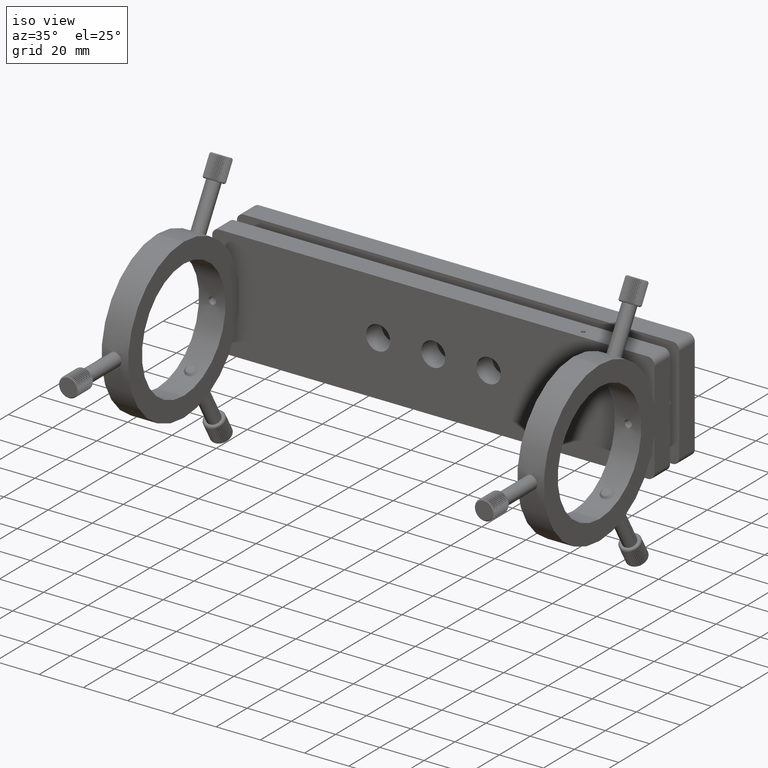
[diagram: clean part render]
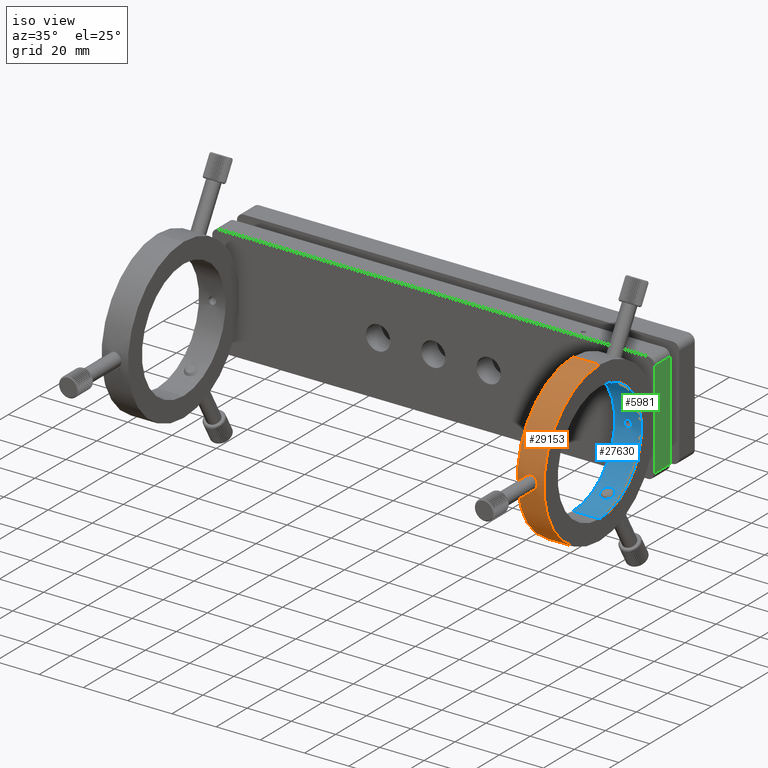
[diagram: same view with three faces highlighted in distinct colors, each labeled with its STEP entity id]
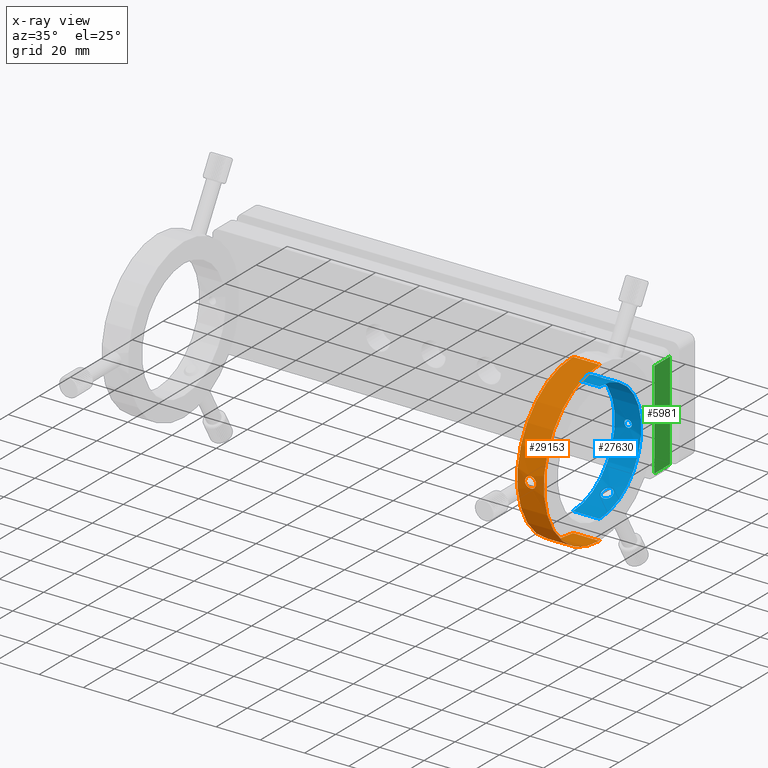
[diagram: x-ray of the same camera — body ghosted, the three highlighted faces saturated]
A machine part, iso view with three faces highlighted in distinct colors.
The next image is the same camera in x-ray (body ghosted, the three faces saturated) — at least one of them is partly hidden behind the body in this view.
Their STEP definitions:

[orange] entity #29153 — the highlighted cylindrical surface (partial cylindrical patch) has radius 36 mm, axis along (1, -0, 0).
#1092 = VERTEX_POINT ( 'NONE', #44665 ) ;
#1402 = CARTESIAN_POINT ( 'NONE',  ( 96.36693914623083400, -52.91295791704509800, -35.99999999999999300 ) ) ;
#2074 = CARTESIAN_POINT ( 'NONE',  ( 88.71625864207503300, -88.86377367074162200, -1.884806156109657800 ) ) ;
#2231 = CARTESIAN_POINT ( 'NONE',  ( 91.61989632803644700, -88.84763830364579500, -2.169590548319280100 ) ) ;
#2399 = CARTESIAN_POINT ( 'NONE',  ( 92.53673800274860600, -88.89142123570967200, -1.252463694352014400 ) ) ;
#2591 = EDGE_CURVE ( 'NONE', #38362, #33787, #34173, .T. ) ;
#2720 = CARTESIAN_POINT ( 'NONE',  ( 92.78717414306538600, -88.90749267773381300, -0.6473099060677034400 ) ) ;
#2773 = CARTESIAN_POINT ( 'NONE',  ( 84.36693914623079100, -52.91295791704509800, -36.00000000000000700 ) ) ;
#3624 = AXIS2_PLACEMENT_3D ( 'NONE', #23881, #12550, #38853 ) ;
#3644 = CARTESIAN_POINT ( 'NONE',  ( 88.71309207276220800, -88.86392427792402800, 1.881846646252523600 ) ) ;
#4444 = CARTESIAN_POINT ( 'NONE',  ( 92.24886335070574700, -88.87513740292246200, 1.653771092440506000 ) ) ;
#4600 = CARTESIAN_POINT ( 'NONE',  ( 92.61309516743132500, -88.89616692592505800, 1.109633475276987900 ) ) ;
#4944 = B_SPLINE_CURVE_WITH_KNOTS ( 'NONE', 3,
 ( #47150, #9957, #32520, #2720, #24572, #17635, #2399, #43994, #47309, #29073, #40042, #2231, #28563, #6533, #6045, #32339, #43836, #28908, #21424, #6363, #39864, #32816, #10292, #17308, #2074, #47631, #43686, #10134, #14020, #7762, #48691, #11366, #26322, #30452 ),
 .UNSPECIFIED., .F., .F.,
 ( 4, 2, 2, 2, 2, 2, 2, 2, 2, 2, 2, 2, 2, 2, 2, 2, 4 ),
 ( 2.523894446711958700E-020, 0.0004886557414019542100, 0.0009773114828039084200, 0.001465967224205862300, 0.001954622965607816000, 0.002443278707009769400, 0.002931934448411723300, 0.003420590189813677200, 0.003909245931215631100, 0.004397901672617585000, 0.004886557414019538800, 0.005375213155421493600, 0.005863868896823448300, 0.006352524638225402200, 0.006841180379627356100, 0.007329836121029310900, 0.007818491862431263900 ),
 .UNSPECIFIED. ) ;
#5384 = DIRECTION ( 'NONE',  ( 1.000000000000000000, -2.025454320056202900E-032, 1.054711873393898300E-015 ) ) ;
#6045 = CARTESIAN_POINT ( 'NONE',  ( 91.01597434386458500, -88.83154930085105100, -2.419881807148550800 ) ) ;
#6363 = CARTESIAN_POINT ( 'NONE',  ( 89.71835201917225800, -88.83154586218925900, -2.419930633638419000 ) ) ;
#6533 = CARTESIAN_POINT ( 'NONE',  ( 91.17358315962413000, -88.83479059618085200, -2.371885060027208800 ) ) ;
#7719 = VECTOR ( 'NONE', #5384, 1000.000000000000000 ) ;
#7762 = CARTESIAN_POINT ( 'NONE',  ( 87.99450002554436900, -88.90427003297490700, -0.8052380656971069900 ) ) ;
#8072 = EDGE_CURVE ( 'NONE', #33787, #1092, #41576, .T. ) ;
#8377 = CARTESIAN_POINT ( 'NONE',  ( 92.80050165254331800, -88.90818928583594500, 0.6586249403062206500 ) ) ;
#8689 = CARTESIAN_POINT ( 'NONE',  ( 91.88933089430742000, -88.85804454309638300, 1.989716628330948000 ) ) ;
#8860 = CARTESIAN_POINT ( 'NONE',  ( 89.55913214990586400, -88.83481355326651400, 2.371549571165712900 ) ) ;
#8893 = DIRECTION ( 'NONE',  ( 1.156482317317870300E-015, 0.0000000000000000000, -1.000000000000000000 ) ) ;
#9304 = FACE_BOUND ( 'NONE', #47026, .T. ) ;
#9870 = ORIENTED_EDGE ( 'NONE', *, *, #47521, .T. ) ;
#9957 = CARTESIAN_POINT ( 'NONE',  ( 92.86693914623074900, -88.91295791704509100, -0.1652343075597179400 ) ) ;
#10134 = CARTESIAN_POINT ( 'NONE',  ( 88.19824246860086700, -88.89135529962818800, -1.254302439526585800 ) ) ;
#10292 = CARTESIAN_POINT ( 'NONE',  ( 89.11338646820561800, -88.84766369865556600, -2.169132977666624400 ) ) ;
#10560 = VECTOR ( 'NONE', #12588, 1000.000000000000000 ) ;
#11175 = CARTESIAN_POINT ( 'NONE',  ( 89.11327249898745600, -88.84766608566936000, 2.169107371036529400 ) ) ;
#11178 = LINE ( 'NONE', #34822, #10560 ) ;
#11366 = CARTESIAN_POINT ( 'NONE',  ( 87.88329328273684400, -88.91181178230395700, -0.3289320257055001200 ) ) ;
#11412 = CIRCLE ( 'NONE', #22835, 36.00000000000003600 ) ;
#11801 = CARTESIAN_POINT ( 'NONE',  ( 87.88275613780106700, -88.91184883293675500, 0.3253315992489050900 ) ) ;
#11965 = CARTESIAN_POINT ( 'NONE',  ( 92.86693914623074900, -88.91295791704509100, 2.662751847420197400E-015 ) ) ;
#12024 = ORIENTED_EDGE ( 'NONE', *, *, #8072, .T. ) ;
#12115 = CARTESIAN_POINT ( 'NONE',  ( 92.01806056609758900, -88.86379819382042900, 1.884249345080856800 ) ) ;
#12550 = DIRECTION ( 'NONE',  ( -1.000000000000000000, 2.025454320056202900E-032, -1.054711873393898300E-015 ) ) ;
#12588 = DIRECTION ( 'NONE',  ( 1.000000000000000000, -2.025454320056202900E-032, 1.054711873393898300E-015 ) ) ;
#12595 = CARTESIAN_POINT ( 'NONE',  ( 92.86693914623073500, -88.91295791704507700, 0.3303926226988550000 ) ) ;
#13240 = ORIENTED_EDGE ( 'NONE', *, *, #2591, .T. ) ;
#14020 = CARTESIAN_POINT ( 'NONE',  ( 88.11997141435487900, -88.89621714175960700, -1.108156909340773500 ) ) ;
#14503 = VERTEX_POINT ( 'NONE', #43898 ) ;
#14871 = EDGE_CURVE ( 'NONE', #21232, #1092, #11178, .T. ) ;
#16047 = CARTESIAN_POINT ( 'NONE',  ( 90.03760790793438700, -88.82720209049182400, 2.483563216034576600 ) ) ;
#17308 = CARTESIAN_POINT ( 'NONE',  ( 88.84252043599596500, -88.85813197001691300, -1.988134750783008900 ) ) ;
#17635 = CARTESIAN_POINT ( 'NONE',  ( 92.61354651345284600, -88.89619459137163900, -1.108877969106832000 ) ) ;
#19945 = CARTESIAN_POINT ( 'NONE',  ( 84.36693914623079100, -52.91295791704509800, -36.00000000000004300 ) ) ;
#20869 = DIRECTION ( 'NONE',  ( -1.156482317317870300E-015, 0.0000000000000000000, 1.000000000000000000 ) ) ;
#21232 = VERTEX_POINT ( 'NONE', #48788 ) ;
#21424 = CARTESIAN_POINT ( 'NONE',  ( 90.03903902786981900, -88.82718647898543900, -2.483789654013904200 ) ) ;
#22590 = VERTEX_POINT ( 'NONE', #28536 ) ;
#22793 = CARTESIAN_POINT ( 'NONE',  ( 87.99471922098590000, -88.90425640033120700, 0.8056548071568366800 ) ) ;
#22835 = AXIS2_PLACEMENT_3D ( 'NONE', #46689, #42920, #8893 ) ;
#23621 = CARTESIAN_POINT ( 'NONE',  ( 91.61765797550242500, -88.84756343191909900, 2.170795086085730600 ) ) ;
#23776 = CARTESIAN_POINT ( 'NONE',  ( 89.25676760327240800, -88.84288473385082300, 2.245956067471756700 ) ) ;
#23881 = CARTESIAN_POINT ( 'NONE',  ( 96.36693914623079100, -52.91295791704509100, 6.328271240363415200E-015 ) ) ;
#24180 = EDGE_CURVE ( 'NONE', #14503, #22590, #35469, .T. ) ;
#24572 = CARTESIAN_POINT ( 'NONE',  ( 92.73907458406573300, -88.90424996711708200, -0.8061193940071771400 ) ) ;
#26137 = CARTESIAN_POINT ( 'NONE',  ( 88.36763641919634400, -88.88092004932116200, 1.535908973670779400 ) ) ;
#26322 = CARTESIAN_POINT ( 'NONE',  ( 87.86693914623077700, -88.91295791704511900, -0.1631873744001538800 ) ) ;
#27203 = AXIS2_PLACEMENT_3D ( 'NONE', #39656, #28028, #20869 ) ;
#27263 = CARTESIAN_POINT ( 'NONE',  ( 90.19993888711795200, -88.82605678254677200, 2.499865975313847700 ) ) ;
#27422 = CARTESIAN_POINT ( 'NONE',  ( 92.53517267457910100, -88.89132518335303200, 1.255276878925633400 ) ) ;
#27522 = FACE_OUTER_BOUND ( 'NONE', #31373, .T. ) ;
#28028 = DIRECTION ( 'NONE',  ( 1.000000000000000000, -2.025454320056202900E-032, 1.054711873393898300E-015 ) ) ;
#28536 = CARTESIAN_POINT ( 'NONE',  ( 92.86693914623074900, -88.91295791704509100, 2.662751847420197400E-015 ) ) ;
#28563 = CARTESIAN_POINT ( 'NONE',  ( 91.47443259194184900, -88.84280526149919400, -2.247214179830362600 ) ) ;
#28908 = CARTESIAN_POINT ( 'NONE',  ( 90.20472181628854000, -88.82604339378268300, -2.500058308115362700 ) ) ;
#29073 = CARTESIAN_POINT ( 'NONE',  ( 92.01906158776552000, -88.86384445498951800, -1.883368583144558100 ) ) ;
#29153 = ADVANCED_FACE ( 'NONE', ( #9304, #27522 ), #31070, .T. ) ;
#30452 = CARTESIAN_POINT ( 'NONE',  ( 87.86693914623076300, -88.91295791704509100, -2.942941371903136600E-015 ) ) ;
#30582 = CARTESIAN_POINT ( 'NONE',  ( 87.86693914623076300, -88.91295791704509100, -2.942941371903136600E-015 ) ) ;
#30899 = CARTESIAN_POINT ( 'NONE',  ( 91.17096516560511100, -88.83472724966658500, 2.372853313273962000 ) ) ;
#31070 = CYLINDRICAL_SURFACE ( 'NONE', #27203, 36.00000000000003600 ) ;
#31227 = CARTESIAN_POINT ( 'NONE',  ( 90.52990229921570600, -88.82603823642153900, 2.500132394863278300 ) ) ;
#31373 = EDGE_LOOP ( 'NONE', ( #39022, #13240, #12024, #45625 ) ) ;
#32339 = CARTESIAN_POINT ( 'NONE',  ( 90.69320822322089300, -88.82716696889043800, -2.484073899411224100 ) ) ;
#32520 = CARTESIAN_POINT ( 'NONE',  ( 92.85071894586941700, -88.91182119481564400, -0.3276972097888801700 ) ) ;
#32816 = CARTESIAN_POINT ( 'NONE',  ( 89.25973349342864100, -88.84279240741554400, -2.247428021355258700 ) ) ;
#33202 = EDGE_CURVE ( 'NONE', #38362, #21232, #11412, .T. ) ;
#33704 = CARTESIAN_POINT ( 'NONE',  ( 88.84156319494728400, -88.85817099047859800, 1.987444353118165800 ) ) ;
#33787 = VERTEX_POINT ( 'NONE', #1402 ) ;
#34173 = LINE ( 'NONE', #19945, #7719 ) ;
#34665 = CARTESIAN_POINT ( 'NONE',  ( 91.47403016538426400, -88.84278820708301800, 2.247496420788213500 ) ) ;
#34822 = CARTESIAN_POINT ( 'NONE',  ( 84.36693914623070600, -52.91295791704509100, 36.00000000000002800 ) ) ;
#34989 = CARTESIAN_POINT ( 'NONE',  ( 89.71805040784207100, -88.83155382613152500, 2.419811711218496700 ) ) ;
#35433 = ORIENTED_EDGE ( 'NONE', *, *, #24180, .T. ) ;
#35469 = B_SPLINE_CURVE_WITH_KNOTS ( 'NONE', 3,
 ( #30582, #41562, #11801, #38082, #22793, #41092, #26137, #3644, #33704, #11175, #23776, #8860, #34989, #16047, #27263, #31227, #41908, #46163, #30899, #34665, #23621, #8689, #12115, #4444, #38738, #27422, #4600, #8377, #12595, #11965 ),
 .UNSPECIFIED., .F., .F.,
 ( 4, 2, 2, 2, 2, 2, 2, 2, 2, 2, 2, 2, 2, 2, 4 ),
 ( 0.007818491862431263900, 0.008307035235726456500, 0.008795578609021649200, 0.009772665355612048300, 0.01026120872890724800, 0.01074975210220244700, 0.01123829547549764700, 0.01172683884879284500, 0.01221538222208804600, 0.01270392559538324400, 0.01319246896867844400, 0.01368101234197364300, 0.01416955571526884100, 0.01465809908856404200, 0.01563518583515442400 ),
 .UNSPECIFIED. ) ;
#38082 = CARTESIAN_POINT ( 'NONE',  ( 87.94671836446617900, -88.90749153796282700, 0.6477169415382096900 ) ) ;
#38362 = VERTEX_POINT ( 'NONE', #2773 ) ;
#38738 = CARTESIAN_POINT ( 'NONE',  ( 92.35237960415285800, -88.88077197806136100, 1.528065071999594100 ) ) ;
#38853 = DIRECTION ( 'NONE',  ( 1.156482317317870300E-015, 0.0000000000000000000, -1.000000000000000000 ) ) ;
#39022 = ORIENTED_EDGE ( 'NONE', *, *, #33202, .F. ) ;
#39656 = CARTESIAN_POINT ( 'NONE',  ( 84.36693914623074900, -52.91295791704509100, -6.328271240363397800E-015 ) ) ;
#39864 = CARTESIAN_POINT ( 'NONE',  ( 89.56248139005839400, -88.83473758383337300, -2.372695679454897000 ) ) ;
#40042 = CARTESIAN_POINT ( 'NONE',  ( 91.89321029473943300, -88.85820595355861000, -1.986836990803454400 ) ) ;
#41092 = CARTESIAN_POINT ( 'NONE',  ( 88.18151189596768800, -88.89226653774051100, 1.256955011885042600 ) ) ;
#41562 = CARTESIAN_POINT ( 'NONE',  ( 87.86693914623076300, -88.91295791704509100, 0.1631498488893339300 ) ) ;
#41576 = CIRCLE ( 'NONE', #3624, 36.00000000000003600 ) ;
#41908 = CARTESIAN_POINT ( 'NONE',  ( 90.69284400641296900, -88.82717088632536200, 2.484011389980628000 ) ) ;
#42920 = DIRECTION ( 'NONE',  ( -1.000000000000000000, 2.025454320056202900E-032, -1.054711873393898300E-015 ) ) ;
#43686 = CARTESIAN_POINT ( 'NONE',  ( 88.37928841192551500, -88.88089625636449400, -1.525045719898584500 ) ) ;
#43836 = CARTESIAN_POINT ( 'NONE',  ( 90.53094874768258600, -88.82605153409085100, -2.499941370660892400 ) ) ;
#43898 = CARTESIAN_POINT ( 'NONE',  ( 87.86693914623076300, -88.91295791704509100, -2.942941371903136600E-015 ) ) ;
#43994 = CARTESIAN_POINT ( 'NONE',  ( 92.35527945039135000, -88.88093385203338000, -1.524203142060315500 ) ) ;
#44665 = CARTESIAN_POINT ( 'NONE',  ( 96.36693914623074900, -52.91295791704509100, 36.00000000000000700 ) ) ;
#45625 = ORIENTED_EDGE ( 'NONE', *, *, #14871, .F. ) ;
#46163 = CARTESIAN_POINT ( 'NONE',  ( 91.01237768200046200, -88.83149171407505700, 2.420730398038426000 ) ) ;
#46689 = CARTESIAN_POINT ( 'NONE',  ( 84.36693914623074900, -52.91295791704509100, -6.328271240363397800E-015 ) ) ;
#47026 = EDGE_LOOP ( 'NONE', ( #9870, #35433 ) ) ;
#47150 = CARTESIAN_POINT ( 'NONE',  ( 92.86693914623074900, -88.91295791704509100, 2.662751847420197400E-015 ) ) ;
#47309 = CARTESIAN_POINT ( 'NONE',  ( 92.24969400401636200, -88.87518115417051900, -1.652821807480581200 ) ) ;
#47521 = EDGE_CURVE ( 'NONE', #22590, #14503, #4944, .T. ) ;
#47631 = CARTESIAN_POINT ( 'NONE',  ( 88.48280036435390600, -88.87524908680798300, -1.651442225309847500 ) ) ;
#48691 = CARTESIAN_POINT ( 'NONE',  ( 87.94722772903861600, -88.90745730486135300, -0.6493764010917713000 ) ) ;
#48788 = CARTESIAN_POINT ( 'NONE',  ( 84.36693914623070600, -52.91295791704509100, 35.99999999999999300 ) ) ;

[blue] entity #27630 — the highlighted cylindrical surface (partial cylindrical patch) has radius 27 mm, axis along (1, -0, 0).
#65 = B_SPLINE_CURVE_WITH_KNOTS ( 'NONE', 3,
 ( #32759, #40456, #6629, #10726, #21711, #10236, #13963, #10390, #48048, #40297, #17883, #25524, #14293, #18035, #28849, #3168, #29493, #37021, #40801, #175, #11363, #11033, #33874, #10877, #44919, #7121, #11207, #41132, #30299, #41600, #37188, #34048, #22188, #37339 ),
 .UNSPECIFIED., .F., .F.,
 ( 4, 2, 2, 2, 2, 2, 2, 2, 2, 2, 2, 2, 2, 2, 2, 2, 4 ),
 ( 0.0000000000000000000, 0.0004887702690820997300, 0.0009775405381641994500, 0.001466310807246299100, 0.001955081076328398900, 0.002443851345410498700, 0.002932621614492598100, 0.003421391883574698000, 0.003910162152656797800, 0.004398932421738897600, 0.004887702690820997500, 0.005376472959903097300, 0.005865243228985196300, 0.006354013498067296100, 0.006842783767149395900, 0.007331554036231495800, 0.007820324305313595600 ),
 .UNSPECIFIED. ) ;
#97 = CARTESIAN_POINT ( 'NONE',  ( 91.79901940316560200, -25.92546493686239400, 0.8266038068291619000 ) ) ;
#175 = CARTESIAN_POINT ( 'NONE',  ( 92.78684029790711900, -38.85482506467888400, -23.05199825724794800 ) ) ;
#241 = CARTESIAN_POINT ( 'NONE',  ( 90.15054143025082600, -25.96276068515827600, 1.639303137904372800 ) ) ;
#269 = ORIENTED_EDGE ( 'NONE', *, *, #16444, .F. ) ;
#601 = CARTESIAN_POINT ( 'NONE',  ( 88.76017318428382900, -25.91569020277783500, -0.4324214926152932800 ) ) ;
#751 = CARTESIAN_POINT ( 'NONE',  ( 90.14960100807617500, -25.96275166518877600, -1.639154389097082800 ) ) ;
#914 = CARTESIAN_POINT ( 'NONE',  ( 92.53649292676887200, -38.34218251725305700, 22.73128300586734300 ) ) ;
#1074 = CARTESIAN_POINT ( 'NONE',  ( 92.01830285759709200, -41.07751656232388600, 24.26800391698875700 ) ) ;
#1287 = VERTEX_POINT ( 'NONE', #33103 ) ;
#3000 = CARTESIAN_POINT ( 'NONE',  ( 87.99417222495492300, -38.72221983526953400, 22.97054469209615100 ) ) ;
#3163 = CARTESIAN_POINT ( 'NONE',  ( 89.11170750235025700, -37.57870918103028400, 22.22316866417626000 ) ) ;
#3168 = CARTESIAN_POINT ( 'NONE',  ( 92.85100372107240200, -39.69632608730525900, -23.54456835397855500 ) ) ;
#3331 = CARTESIAN_POINT ( 'NONE',  ( 90.03646404388636900, -41.63601636773608300, -24.53223571738763900 ) ) ;
#3513 = CARTESIAN_POINT ( 'NONE',  ( 89.26028788232966300, -37.51327624103354500, -22.17777515806230000 ) ) ;
#3660 = CARTESIAN_POINT ( 'NONE',  ( 90.36693914623079100, -41.63601636773608300, -24.53223571738764600 ) ) ;
#3746 = CARTESIAN_POINT ( 'NONE',  ( 89.53961704673703500, -25.95087379332166200, 1.431641291073628900 ) ) ;
#4057 = CARTESIAN_POINT ( 'NONE',  ( 91.60956532232641800, -25.93489576997605200, 1.090854160047212100 ) ) ;
#4231 = CARTESIAN_POINT ( 'NONE',  ( 91.67925665004254700, -25.93155504907102600, 1.005957496595285300 ) ) ;
#4578 = CARTESIAN_POINT ( 'NONE',  ( 92.85071848540394500, -39.69776005528243000, 23.54536617726308400 ) ) ;
#4905 = CARTESIAN_POINT ( 'NONE',  ( 88.71693914623075700, -25.91295791704508400, -0.2153510065775076400 ) ) ;
#4979 = CARTESIAN_POINT ( 'NONE',  ( 96.36693914623082000, -52.91295791704509100, -26.99999999999999300 ) ) ;
#5498 = CARTESIAN_POINT ( 'NONE',  ( 89.11498036992613000, -41.33597894189031800, 24.39225179215491200 ) ) ;
#5650 = CARTESIAN_POINT ( 'NONE',  ( 88.71569909594366300, -41.07745224692101300, 24.26796492199305900 ) ) ;
#5815 = B_SPLINE_CURVE_WITH_KNOTS ( 'NONE', 3,
 ( #26918, #41408, #22949, #8016, #8179, #11945, #14900, #41255, #34640, #34811, #38552, #914, #23606, #8363, #12098, #34968, #27757, #8515, #4578, #12258, #42380, #19949, #42044, #42207, #42690, #1074, #12574, #38889, #15696, #27402, #46144, #46479, #19469, #31369 ),
 .UNSPECIFIED., .F., .F.,
 ( 4, 2, 2, 2, 2, 2, 2, 2, 2, 2, 2, 2, 2, 2, 2, 2, 4 ),
 ( 0.0000000000000000000, 0.0004887702690820998300, 0.0009775405381641996700, 0.001466310807246299500, 0.001955081076328399300, 0.002443851345410499200, 0.002932621614492599000, 0.003421391883574698800, 0.003910162152656798700, 0.004398932421738898500, 0.004887702690820998300, 0.005376472959903098200, 0.005865243228985198000, 0.006354013498067297800, 0.006842783767149397700, 0.007331554036231497500, 0.007820324305313597300 ),
 .UNSPECIFIED. ) ;
#5901 = CARTESIAN_POINT ( 'NONE',  ( 84.36693914623072000, -52.91295791704509100, 27.00000000000002500 ) ) ;
#6246 = B_SPLINE_CURVE_WITH_KNOTS ( 'NONE', 3,
 ( #25856, #18518, #33586, #26023, #25527, #3513, #17886, #33414, #32933, #10393, #36688, #18036, #21714, #37194, #18211, #11036, #33102, #37341, #6945, #21878, #14802, #44437, #29313, #41135, #10563, #48052, #6784, #22366, #40803, #14627, #3331, #33252 ),
 .UNSPECIFIED., .F., .F.,
 ( 4, 2, 2, 2, 2, 2, 2, 2, 2, 2, 2, 2, 2, 2, 2, 4 ),
 ( 0.007820324305313595600, 0.008308980532614342100, 0.008797636759915088500, 0.009286292987215834900, 0.009774949214516581400, 0.01026360544181732800, 0.01075226166911807300, 0.01124091789641882100, 0.01172957412371956500, 0.01221823035102031400, 0.01270688657832105800, 0.01319554280562180500, 0.01368419903292255100, 0.01417285526022329900, 0.01466151148752404400, 0.01563882394212554400 ),
 .UNSPECIFIED. ) ;
#6302 = CARTESIAN_POINT ( 'NONE',  ( 84.36693914623072000, -52.91295791704509100, 26.99999999999999300 ) ) ;
#6469 = CARTESIAN_POINT ( 'NONE',  ( 87.86706826062449200, -39.55763107325429200, 23.46619918337882300 ) ) ;
#6503 = FACE_BOUND ( 'NONE', #26236, .T. ) ;
#6624 = CARTESIAN_POINT ( 'NONE',  ( 88.37731866243467500, -38.11572552407042700, 22.58451724495219900 ) ) ;
#6629 = CARTESIAN_POINT ( 'NONE',  ( 90.69471139435319200, -41.62120073092334100, -24.52544063424395300 ) ) ;
#6774 = CARTESIAN_POINT ( 'NONE',  ( 88.71312496508726000, -37.81590974633248700, 22.38509544701694400 ) ) ;
#6784 = CARTESIAN_POINT ( 'NONE',  ( 88.83881242538737400, -41.16883294091798700, -24.31221788154065100 ) ) ;
#6945 = CARTESIAN_POINT ( 'NONE',  ( 87.88293089252141500, -39.69598526964318800, -23.54436620764346700 ) ) ;
#7121 = CARTESIAN_POINT ( 'NONE',  ( 92.01830285759712100, -37.81397070315329500, -22.38379483668395400 ) ) ;
#7497 = CARTESIAN_POINT ( 'NONE',  ( 89.12342048400549300, -25.93485726768200500, 1.089966301467005800 ) ) ;
#7664 = CARTESIAN_POINT ( 'NONE',  ( 88.80111993606782100, -25.91800319018784600, 0.5314310150677722400 ) ) ;
#7982 = CARTESIAN_POINT ( 'NONE',  ( 91.38122143728571700, -25.94477039625771700, 1.319114051965992300 ) ) ;
#8008 = CARTESIAN_POINT ( 'NONE',  ( 89.36018875164937500, -25.94477270290525800, -1.311712739960830600 ) ) ;
#8016 = CARTESIAN_POINT ( 'NONE',  ( 91.01437654949266700, -37.37133574985441000, 22.07847365798739900 ) ) ;
#8179 = CARTESIAN_POINT ( 'NONE',  ( 91.17320887942386800, -37.41083688341447600, 22.10629350765464500 ) ) ;
#8237 = FACE_BOUND ( 'NONE', #21685, .T. ) ;
#8241 = DIRECTION ( 'NONE',  ( 1.000000000000000000, -2.025454320056202900E-032, 1.054711873393898300E-015 ) ) ;
#8338 = B_SPLINE_CURVE_WITH_KNOTS ( 'NONE', 3,
 ( #15015, #41378, #34290, #33797, #18774, #34446, #97, #4231, #4057, #7982, #11907, #33955, #42008, #38030, #241, #19430, #45786, #23232, #3746, #15502, #30059, #7497, #45141, #22580, #30214, #7664, #42162, #35090, #31169, #46111 ),
 .UNSPECIFIED., .F., .F.,
 ( 4, 2, 2, 2, 2, 2, 2, 2, 2, 2, 2, 2, 2, 2, 4 ),
 ( 2.220833694804172700E-020, 0.0003224908972504639100, 0.0006449817945009278100, 0.0009674726917513917700, 0.001289963589001855600, 0.001934945383502812800, 0.002579927178003770200, 0.002902418075254269800, 0.003224908972504768800, 0.003547399869755268800, 0.003869890767005767900, 0.004192381664256267400, 0.004514872561506766100, 0.004837363458757265600, 0.005159854356007765100 ),
 .UNSPECIFIED. ) ;
#8346 = CARTESIAN_POINT ( 'NONE',  ( 91.80818639555306500, -25.92503624567508100, -0.8315574887568313300 ) ) ;
#8363 = CARTESIAN_POINT ( 'NONE',  ( 92.73877632036691000, -38.72008111216221200, 22.96921638726304200 ) ) ;
#8501 = CARTESIAN_POINT ( 'NONE',  ( 89.04739468055439000, -25.93156365996145100, -1.013694613292268800 ) ) ;
#8515 = CARTESIAN_POINT ( 'NONE',  ( 92.86699797286453900, -39.55346979636629400, 23.46381676308041300 ) ) ;
#8638 = DIRECTION ( 'NONE',  ( -1.000000000000000000, 2.025454320056202900E-032, -1.054711873393898300E-015 ) ) ;
#8807 = LINE ( 'NONE', #11520, #39962 ) ;
#9784 = ORIENTED_EDGE ( 'NONE', *, *, #48338, .F. ) ;
#9986 = EDGE_LOOP ( 'NONE', ( #29769, #15861, #21200, #40029 ) ) ;
#10236 = CARTESIAN_POINT ( 'NONE',  ( 91.47594728453640300, -41.40529623117225800, -24.42493995307666300 ) ) ;
#10304 = CARTESIAN_POINT ( 'NONE',  ( 96.36693914623076300, -52.91295791704509100, 27.00000000000000700 ) ) ;
#10390 = CARTESIAN_POINT ( 'NONE',  ( 91.89122685772909400, -41.17143098521773200, -24.31347005474244600 ) ) ;
#10393 = CARTESIAN_POINT ( 'NONE',  ( 88.48508743856619700, -38.00591613514485100, -22.51207278851296000 ) ) ;
#10563 = CARTESIAN_POINT ( 'NONE',  ( 88.48275648324971600, -40.86807457208168900, -24.16472939734893500 ) ) ;
#10721 = CARTESIAN_POINT ( 'NONE',  ( 88.19619348211355700, -38.34404860788024600, 22.73247428725196100 ) ) ;
#10726 = CARTESIAN_POINT ( 'NONE',  ( 91.01437654949269500, -41.56324993603792000, -24.49867644180025600 ) ) ;
#10877 = CARTESIAN_POINT ( 'NONE',  ( 92.35502228917181400, -38.11408263333556300, -22.58343803537023200 ) ) ;
#11033 = CARTESIAN_POINT ( 'NONE',  ( 92.61428055242799900, -38.46508030048068600, -22.80968615490605300 ) ) ;
#11036 = CARTESIAN_POINT ( 'NONE',  ( 87.88338959637630400, -39.12842574155799000, -23.21663652356111400 ) ) ;
#11104 = VERTEX_POINT ( 'NONE', #44306 ) ;
#11207 = CARTESIAN_POINT ( 'NONE',  ( 91.89203864277963900, -37.72819169813601500, -22.32557092144708800 ) ) ;
#11363 = CARTESIAN_POINT ( 'NONE',  ( 92.73959206605607600, -38.72194532464897100, -22.97037465325696800 ) ) ;
#11520 = CARTESIAN_POINT ( 'NONE',  ( 84.36693914623077700, -52.91295791704509100, -27.00000000000003900 ) ) ;
#11769 = CARTESIAN_POINT ( 'NONE',  ( 88.71693914623077100, -25.91295791704509100, -1.942341319654012400E-015 ) ) ;
#11907 = CARTESIAN_POINT ( 'NONE',  ( 91.19714384748918700, -25.95136794581019400, 1.442032573406852900 ) ) ;
#11928 = CARTESIAN_POINT ( 'NONE',  ( 91.45666641376907100, -25.94150609155889600, -1.243617186651646100 ) ) ;
#11945 = CARTESIAN_POINT ( 'NONE',  ( 91.47594728453634600, -37.51417027470773700, 22.17839733466114900 ) ) ;
#12090 = CARTESIAN_POINT ( 'NONE',  ( 91.37169433964578500, -25.94484701928745100, -1.313230415708718700 ) ) ;
#12098 = CARTESIAN_POINT ( 'NONE',  ( 92.78679639433080700, -38.85445619423389000, 23.05178052142122900 ) ) ;
#12258 = CARTESIAN_POINT ( 'NONE',  ( 92.78684029790706200, -39.97840824445699300, 23.70069930854978000 ) ) ;
#12574 = CARTESIAN_POINT ( 'NONE',  ( 91.89203864277958200, -41.17082945453542900, 24.31317875682664800 ) ) ;
#12867 = CARTESIAN_POINT ( 'NONE',  ( 84.36693914623074900, -52.91295791704509100, -6.328271240363397800E-015 ) ) ;
#13471 = CARTESIAN_POINT ( 'NONE',  ( 92.01693914623072600, -25.91295791704509500, 1.717421317518219500E-015 ) ) ;
#13655 = CARTESIAN_POINT ( 'NONE',  ( 90.04154320002261600, -41.62157274140883300, 24.52561219767411800 ) ) ;
#13960 = CARTESIAN_POINT ( 'NONE',  ( 87.94715729722145200, -39.97867363299951600, 23.70084025564668200 ) ) ;
#13963 = CARTESIAN_POINT ( 'NONE',  ( 91.61951730268094700, -41.33558462377445200, -24.39206240607687100 ) ) ;
#14056 = EDGE_CURVE ( 'NONE', #34480, #17394, #34719, .T. ) ;
#14293 = CARTESIAN_POINT ( 'NONE',  ( 92.61409268216247900, -40.38333544869318100, -23.91717404385531500 ) ) ;
#14368 = EDGE_CURVE ( 'NONE', #31148, #14973, #8338, .T. ) ;
#14627 = CARTESIAN_POINT ( 'NONE',  ( 89.70813878242921600, -41.57523984834663400, -24.50452766241384200 ) ) ;
#14802 = CARTESIAN_POINT ( 'NONE',  ( 87.99417222495500800, -40.11525171581193000, -23.77481202331702900 ) ) ;
#14900 = CARTESIAN_POINT ( 'NONE',  ( 91.61951730268087600, -37.57749886932258900, 22.22233058410640500 ) ) ;
#14973 = VERTEX_POINT ( 'NONE', #15890 ) ;
#15015 = CARTESIAN_POINT ( 'NONE',  ( 92.01693914623072600, -25.91295791704509500, 1.717421317518219500E-015 ) ) ;
#15267 = FACE_OUTER_BOUND ( 'NONE', #9986, .T. ) ;
#15502 = CARTESIAN_POINT ( 'NONE',  ( 89.36083453192036100, -25.94479585632309000, 1.312178397810686200 ) ) ;
#15696 = CARTESIAN_POINT ( 'NONE',  ( 91.47515255575643800, -41.40565423482576800, 24.42510850743075700 ) ) ;
#15861 = ORIENTED_EDGE ( 'NONE', *, *, #37995, .T. ) ;
#15890 = CARTESIAN_POINT ( 'NONE',  ( 88.71693914623077100, -25.91295791704509100, -1.942341319654012400E-015 ) ) ;
#16154 = DIRECTION ( 'NONE',  ( 1.027984282060329000E-015, 0.0000000000000000000, -1.000000000000000000 ) ) ;
#16176 = CARTESIAN_POINT ( 'NONE',  ( 90.58332316888609600, -25.96343258193902400, -1.650177034178419900 ) ) ;
#16328 = AXIS2_PLACEMENT_3D ( 'NONE', #12867, #8638, #16154 ) ;
#16444 = EDGE_CURVE ( 'NONE', #11104, #23367, #6246, .T. ) ;
#17394 = VERTEX_POINT ( 'NONE', #10304 ) ;
#17565 = CARTESIAN_POINT ( 'NONE',  ( 87.88338959637619000, -39.69902698495519600, 23.54607330503641500 ) ) ;
#17883 = CARTESIAN_POINT ( 'NONE',  ( 92.35373792534305400, -40.75620457674102700, -24.10875507086635100 ) ) ;
#17886 = CARTESIAN_POINT ( 'NONE',  ( 89.11498036992618700, -37.57713769710993300, -22.22208378763991700 ) ) ;
#18035 = CARTESIAN_POINT ( 'NONE',  ( 92.73877632036693800, -40.11747142309504000, -23.77600005944308100 ) ) ;
#18036 = CARTESIAN_POINT ( 'NONE',  ( 88.19790793861740500, -38.34153704091125500, -22.73086407156865000 ) ) ;
#18211 = CARTESIAN_POINT ( 'NONE',  ( 87.94715729722150900, -38.85457030664107900, -23.05183889757670100 ) ) ;
#18257 = ORIENTED_EDGE ( 'NONE', *, *, #20357, .F. ) ;
#18518 = CARTESIAN_POINT ( 'NONE',  ( 90.20377113178250300, -37.30588934881392000, -22.03223571738762500 ) ) ;
#18774 = CARTESIAN_POINT ( 'NONE',  ( 91.93255843017853100, -25.91801481000850400, 0.5320099274870981900 ) ) ;
#19341 = CYLINDRICAL_SURFACE ( 'NONE', #24954, 27.00000000000003200 ) ;
#19430 = CARTESIAN_POINT ( 'NONE',  ( 89.93889328263992400, -25.96023029761005700, 1.597159819206348300 ) ) ;
#19469 = CARTESIAN_POINT ( 'NONE',  ( 90.53014524056010300, -41.63601636773624600, 24.53223571738768900 ) ) ;
#19511 = CARTESIAN_POINT ( 'NONE',  ( 84.36693914623077700, -52.91295791704509100, -27.00000000000000700 ) ) ;
#19607 = CARTESIAN_POINT ( 'NONE',  ( 89.83379798801621500, -25.95833325854834000, -1.565225978753670200 ) ) ;
#19949 = CARTESIAN_POINT ( 'NONE',  ( 92.61428055242794200, -40.38312906282859400, 23.91707212416643800 ) ) ;
#20357 = EDGE_CURVE ( 'NONE', #14973, #31148, #37742, .T. ) ;
#20705 = CARTESIAN_POINT ( 'NONE',  ( 88.12105077201242400, -40.38572713804381200, 23.91843195474404700 ) ) ;
#21200 = ORIENTED_EDGE ( 'NONE', *, *, #33081, .F. ) ;
#21520 = CARTESIAN_POINT ( 'NONE',  ( 90.36693914623073500, -37.30588934881406300, 22.03223571738773500 ) ) ;
#21685 = EDGE_LOOP ( 'NONE', ( #42405, #18257 ) ) ;
#21701 = CARTESIAN_POINT ( 'NONE',  ( 87.94623844231246300, -38.85750917287580800, 23.05363109537896100 ) ) ;
#21711 = CARTESIAN_POINT ( 'NONE',  ( 91.17320887942391000, -41.51940667271659200, -24.47837738149257100 ) ) ;
#21714 = CARTESIAN_POINT ( 'NONE',  ( 88.12105077201248100, -38.46260361504801800, -22.80811607105753300 ) ) ;
#21878 = CARTESIAN_POINT ( 'NONE',  ( 87.94623844231252000, -39.97565211105677500, -23.69919122173021700 ) ) ;
#21905 = EDGE_LOOP ( 'NONE', ( #38914, #269 ) ) ;
#22188 = CARTESIAN_POINT ( 'NONE',  ( 90.53014524056013100, -37.30588934881392000, -22.03223571738762800 ) ) ;
#22195 = AXIS2_PLACEMENT_3D ( 'NONE', #37960, #41771, #41945 ) ;
#22366 = CARTESIAN_POINT ( 'NONE',  ( 89.11170750235031300, -41.33425366928968000, -24.39143328542642300 ) ) ;
#22580 = CARTESIAN_POINT ( 'NONE',  ( 88.93558841772109200, -25.92550334081184000, 0.8278212260220021400 ) ) ;
#22949 = CARTESIAN_POINT ( 'NONE',  ( 90.69471139435314900, -37.31918188184368300, 22.04166889366898000 ) ) ;
#23232 = CARTESIAN_POINT ( 'NONE',  ( 89.63621751520318500, -25.95370200932228500, 1.483318874236913000 ) ) ;
#23367 = VERTEX_POINT ( 'NONE', #3660 ) ;
#23483 = CARTESIAN_POINT ( 'NONE',  ( 84.36693914623074900, -52.91295791704509100, -6.328271240363397800E-015 ) ) ;
#23606 = CARTESIAN_POINT ( 'NONE',  ( 92.61409268216240800, -38.46488884250867100, 22.80955837934877900 ) ) ;
#24230 = B_SPLINE_CURVE_WITH_KNOTS ( 'NONE', 3,
 ( #43289, #36203, #13655, #28006, #31968, #39972, #5498, #31800, #5650, #39310, #46899, #28177, #20705, #47079, #13960, #17565, #6469, #36683, #29489, #21701, #3000, #44425, #10721, #6624, #47738, #6774, #36532, #3163, #48211, #47559, #25170, #21520 ),
 .UNSPECIFIED., .F., .F.,
 ( 4, 2, 2, 2, 2, 2, 2, 2, 2, 2, 2, 2, 2, 2, 2, 4 ),
 ( 0.007820324305313597300, 0.008308980532614342100, 0.008797636759915086800, 0.009286292987215831500, 0.009774949214516574400, 0.01026360544181731900, 0.01075226166911806400, 0.01124091789641880900, 0.01172957412371955200, 0.01221823035102029600, 0.01270688657832104100, 0.01319554280562178600, 0.01368419903292253000, 0.01417285526022327500, 0.01466151148752402000, 0.01563882394212549900 ),
 .UNSPECIFIED. ) ;
#24727 = VERTEX_POINT ( 'NONE', #4979 ) ;
#24954 = AXIS2_PLACEMENT_3D ( 'NONE', #23483, #8241, #37959 ) ;
#25170 = CARTESIAN_POINT ( 'NONE',  ( 90.03646404388632600, -37.30588934881406300, 22.03223571738773500 ) ) ;
#25524 = CARTESIAN_POINT ( 'NONE',  ( 92.53649292676891500, -40.51247707324661500, -23.98430315199099300 ) ) ;
#25527 = CARTESIAN_POINT ( 'NONE',  ( 89.56115587727995800, -37.41076125375970200, -22.10623905816804000 ) ) ;
#25856 = CARTESIAN_POINT ( 'NONE',  ( 90.36693914623079100, -37.30588934881392000, -22.03223571738762100 ) ) ;
#26023 = CARTESIAN_POINT ( 'NONE',  ( 89.71900990088090600, -37.37136319026536300, -22.07849329559904600 ) ) ;
#26236 = EDGE_LOOP ( 'NONE', ( #9784, #44002 ) ) ;
#26253 = VERTEX_POINT ( 'NONE', #42279 ) ;
#26901 = CARTESIAN_POINT ( 'NONE',  ( 89.27539875138131700, -25.94143228262072800, -1.242017776801348700 ) ) ;
#26918 = CARTESIAN_POINT ( 'NONE',  ( 90.36693914623073500, -37.30588934881406300, 22.03223571738773500 ) ) ;
#27079 = CARTESIAN_POINT ( 'NONE',  ( 89.53954219653229500, -25.95087244318883200, -1.431625285050159200 ) ) ;
#27347 = EDGE_CURVE ( 'NONE', #1287, #26253, #24230, .T. ) ;
#27402 = CARTESIAN_POINT ( 'NONE',  ( 91.17231316244304700, -41.51968551742550100, 24.47850705542826000 ) ) ;
#27630 = ADVANCED_FACE ( 'NONE', ( #41768, #6503, #8237, #15267 ), #19341, .F. ) ;
#27707 = VECTOR ( 'NONE', #47479, 1000.000000000000000 ) ;
#27757 = CARTESIAN_POINT ( 'NONE',  ( 92.86687999279071400, -39.27088047108174600, 23.30065112601596400 ) ) ;
#28006 = CARTESIAN_POINT ( 'NONE',  ( 89.71900990088084900, -41.56321920916190700, 24.49866249651310600 ) ) ;
#28177 = CARTESIAN_POINT ( 'NONE',  ( 88.19790793861736200, -40.51316261916271300, 23.98465268375120000 ) ) ;
#28849 = CARTESIAN_POINT ( 'NONE',  ( 92.78679639433086400, -39.97878124443673900, -23.70090989181247600 ) ) ;
#29313 = CARTESIAN_POINT ( 'NONE',  ( 88.19619348211361400, -40.51051234799087600, -23.98328271079439500 ) ) ;
#29489 = CARTESIAN_POINT ( 'NONE',  ( 87.88293089252135800, -39.13142498892304400, 23.21841717759591400 ) ) ;
#29493 = CARTESIAN_POINT ( 'NONE',  ( 92.86687999279075700, -39.55504084017859200, -23.46471119160704800 ) ) ;
#29769 = ORIENTED_EDGE ( 'NONE', *, *, #44645, .T. ) ;
#30059 = CARTESIAN_POINT ( 'NONE',  ( 89.27749987547203100, -25.94152017434152700, 1.243980416632381600 ) ) ;
#30214 = CARTESIAN_POINT ( 'NONE',  ( 88.88393448407852300, -25.92268015385557700, 0.7313726100462156800 ) ) ;
#30299 = CARTESIAN_POINT ( 'NONE',  ( 91.47515255575648000, -37.51384530052842300, -22.17817157157961800 ) ) ;
#30717 = CARTESIAN_POINT ( 'NONE',  ( 91.97310042328231800, -25.91572701174252600, -0.4346578457671056400 ) ) ;
#31148 = VERTEX_POINT ( 'NONE', #13471 ) ;
#31169 = CARTESIAN_POINT ( 'NONE',  ( 88.71693914623078600, -25.91295791704508700, 0.1077001652021071400 ) ) ;
#31197 = CARTESIAN_POINT ( 'NONE',  ( 89.93869397782103200, -25.96022567937454500, -1.597081417250377600 ) ) ;
#31369 = CARTESIAN_POINT ( 'NONE',  ( 90.36693914623072000, -41.63601636773625400, 24.53223571738768500 ) ) ;
#31800 = CARTESIAN_POINT ( 'NONE',  ( 88.84155763989025400, -41.17075001398318100, 24.31314342581663400 ) ) ;
#31968 = CARTESIAN_POINT ( 'NONE',  ( 89.56115587727985900, -41.51949164218260100, 24.47841565395159300 ) ) ;
#32759 = CARTESIAN_POINT ( 'NONE',  ( 90.36693914623079100, -41.63601636773608300, -24.53223571738764600 ) ) ;
#32933 = CARTESIAN_POINT ( 'NONE',  ( 88.71569909594374800, -37.81403663151161300, -22.38383103795883100 ) ) ;
#33081 = EDGE_CURVE ( 'NONE', #17394, #24727, #42606, .T. ) ;
#33102 = CARTESIAN_POINT ( 'NONE',  ( 87.86706826062454900, -39.26829671586889200, -23.29915191425655900 ) ) ;
#33103 = CARTESIAN_POINT ( 'NONE',  ( 90.36693914623072000, -41.63601636773625400, 24.53223571738768500 ) ) ;
#33141 = CIRCLE ( 'NONE', #16328, 27.00000000000003200 ) ;
#33252 = CARTESIAN_POINT ( 'NONE',  ( 90.36693914623079100, -41.63601636773608300, -24.53223571738764600 ) ) ;
#33414 = CARTESIAN_POINT ( 'NONE',  ( 88.84155763989034000, -37.72826201596434700, -22.32562205347842600 ) ) ;
#33586 = CARTESIAN_POINT ( 'NONE',  ( 90.04154320002265900, -37.31884729831206500, -22.04143250485316200 ) ) ;
#33797 = CARTESIAN_POINT ( 'NONE',  ( 91.96430041555505900, -25.91613171525491300, 0.4272001033201475700 ) ) ;
#33874 = CARTESIAN_POINT ( 'NONE',  ( 92.53600041035625200, -38.34163544180108800, -22.73092484881871700 ) ) ;
#33955 = CARTESIAN_POINT ( 'NONE',  ( 90.80001557532223400, -25.96067324348842200, 1.606593475439047000 ) ) ;
#34048 = CARTESIAN_POINT ( 'NONE',  ( 90.69592068959616400, -37.31928783238933500, -22.04174413860880900 ) ) ;
#34290 = CARTESIAN_POINT ( 'NONE',  ( 92.00623535175623100, -25.91361803632991100, 0.2162658169107107600 ) ) ;
#34446 = CARTESIAN_POINT ( 'NONE',  ( 91.84971251961263800, -25.92269288524736800, 0.7318342902622836400 ) ) ;
#34480 = VERTEX_POINT ( 'NONE', #6302 ) ;
#34621 = CARTESIAN_POINT ( 'NONE',  ( 90.79752532690265800, -25.96072411873246500, -1.607470466293399600 ) ) ;
#34640 = CARTESIAN_POINT ( 'NONE',  ( 92.01980149125689900, -37.81521519304924100, 22.38462669957388900 ) ) ;
#34719 = LINE ( 'NONE', #5901, #27707 ) ;
#34798 = CARTESIAN_POINT ( 'NONE',  ( 90.25672849628244900, -25.96341627302213000, -1.649910659698136800 ) ) ;
#34811 = CARTESIAN_POINT ( 'NONE',  ( 92.25028380844639700, -38.00733193378761900, 22.51301094670559200 ) ) ;
#34968 = CARTESIAN_POINT ( 'NONE',  ( 92.85100372107237400, -39.13107951623054200, 23.21822309401007100 ) ) ;
#35090 = CARTESIAN_POINT ( 'NONE',  ( 88.72773218377997800, -25.91362355402499100, 0.2170855091574148400 ) ) ;
#36203 = CARTESIAN_POINT ( 'NONE',  ( 90.20377113178243200, -41.63601636773626100, 24.53223571738768500 ) ) ;
#36532 = CARTESIAN_POINT ( 'NONE',  ( 88.83881242538730300, -37.73002209735227600, 22.32681951531578700 ) ) ;
#36675 = VERTEX_POINT ( 'NONE', #19511 ) ;
#36683 = CARTESIAN_POINT ( 'NONE',  ( 87.86681154288470500, -39.27165126158282500, 23.30111610953708400 ) ) ;
#36688 = CARTESIAN_POINT ( 'NONE',  ( 88.37949475896816400, -38.11334032702276200, -22.58295390285915300 ) ) ;
#37021 = CARTESIAN_POINT ( 'NONE',  ( 92.86699797286458100, -39.27244059081383700, -23.30156447560453600 ) ) ;
#37188 = CARTESIAN_POINT ( 'NONE',  ( 91.01645375927367400, -37.37176693909465500, -22.07877746542720100 ) ) ;
#37194 = CARTESIAN_POINT ( 'NONE',  ( 87.99540555904823700, -38.71915933147357700, -22.96865211274501900 ) ) ;
#37339 = CARTESIAN_POINT ( 'NONE',  ( 90.36693914623079100, -37.30588934881392000, -22.03223571738762100 ) ) ;
#37341 = CARTESIAN_POINT ( 'NONE',  ( 87.86681154288477600, -39.55425275738639400, -23.46427615921268000 ) ) ;
#37742 = B_SPLINE_CURVE_WITH_KNOTS ( 'NONE', 3,
 ( #11769, #4905, #601, #45484, #8501, #26901, #8008, #27079, #42188, #19607, #31197, #751, #34798, #16176, #34621, #38047, #42523, #12090, #11928, #38229, #8346, #30717, #38542, #38386 ),
 .UNSPECIFIED., .F., .F.,
 ( 4, 2, 2, 2, 2, 2, 2, 2, 2, 2, 2, 4 ),
 ( 0.005159854356007765100, 0.005804688458208466500, 0.006449522560409167900, 0.006771939611509534200, 0.007094356662609899700, 0.007416773713710266000, 0.007739190764810631500, 0.008384024867011404000, 0.008706441918111790200, 0.009028858969212176500, 0.009673693071412949000, 0.01031852717361372200 ),
 .UNSPECIFIED. ) ;
#37959 = DIRECTION ( 'NONE',  ( -1.027984282060329000E-015, 0.0000000000000000000, 1.000000000000000000 ) ) ;
#37960 = CARTESIAN_POINT ( 'NONE',  ( 96.36693914623079100, -52.91295791704509100, 6.328271240363415200E-015 ) ) ;
#37995 = EDGE_CURVE ( 'NONE', #36675, #24727, #8807, .T. ) ;
#38030 = CARTESIAN_POINT ( 'NONE',  ( 90.25988228181604700, -25.96342409279081300, 1.650038380420716800 ) ) ;
#38047 = CARTESIAN_POINT ( 'NONE',  ( 91.09759897672583400, -25.95370413744505100, -1.483358571569484600 ) ) ;
#38229 = CARTESIAN_POINT ( 'NONE',  ( 91.68519442467071200, -25.93162864647801400, -1.015411206887411700 ) ) ;
#38386 = CARTESIAN_POINT ( 'NONE',  ( 92.01693914623072600, -25.91295791704509500, 1.717421317518219500E-015 ) ) ;
#38542 = CARTESIAN_POINT ( 'NONE',  ( 92.01693914623069800, -25.91295791704508700, -0.2180433936426509300 ) ) ;
#38552 = CARTESIAN_POINT ( 'NONE',  ( 92.35373792534299800, -38.11254024221008100, 22.58243475567790500 ) ) ;
#38889 = CARTESIAN_POINT ( 'NONE',  ( 91.62133499403778100, -41.33459647964201600, 24.39159257851655500 ) ) ;
#38914 = ORIENTED_EDGE ( 'NONE', *, *, #48848, .F. ) ;
#39310 = CARTESIAN_POINT ( 'NONE',  ( 88.48508743856608300, -40.87045188129872000, 24.16591327265818700 ) ) ;
#39962 = VECTOR ( 'NONE', #46050, 1000.000000000000000 ) ;
#39972 = CARTESIAN_POINT ( 'NONE',  ( 89.26028788232962100, -41.40628206874961100, 24.42540312065094100 ) ) ;
#40029 = ORIENTED_EDGE ( 'NONE', *, *, #14056, .F. ) ;
#40297 = CARTESIAN_POINT ( 'NONE',  ( 92.25028380844646800, -40.86893151314974700, -24.16515623416322000 ) ) ;
#40456 = CARTESIAN_POINT ( 'NONE',  ( 90.53221526026915500, -41.63601636773608300, -24.53223571738763900 ) ) ;
#40801 = CARTESIAN_POINT ( 'NONE',  ( 92.85071848540398800, -39.12967159700982500, -23.21738015295586900 ) ) ;
#40803 = CARTESIAN_POINT ( 'NONE',  ( 89.25717380858135600, -41.40488574787927000, -24.42474578557768800 ) ) ;
#41132 = CARTESIAN_POINT ( 'NONE',  ( 91.62133499403786600, -37.57839982399143300, -22.22295142824753000 ) ) ;
#41135 = CARTESIAN_POINT ( 'NONE',  ( 88.37731866243471800, -40.75280844719622300, -24.10703778049422400 ) ) ;
#41255 = CARTESIAN_POINT ( 'NONE',  ( 91.89122685772905200, -37.72763866139970900, 22.32519562955295800 ) ) ;
#41378 = CARTESIAN_POINT ( 'NONE',  ( 92.01693914623072600, -25.91295791704509100, 0.1090466670658035000 ) ) ;
#41408 = CARTESIAN_POINT ( 'NONE',  ( 90.53221526026909800, -37.30588934881406300, 22.03223571738773900 ) ) ;
#41600 = CARTESIAN_POINT ( 'NONE',  ( 91.17231316244313200, -37.41058516013752900, -22.10611685802087600 ) ) ;
#41768 = FACE_BOUND ( 'NONE', #21905, .T. ) ;
#41771 = DIRECTION ( 'NONE',  ( -1.000000000000000000, 2.025454320056202900E-032, -1.054711873393898300E-015 ) ) ;
#41945 = DIRECTION ( 'NONE',  ( 1.027984282060329000E-015, 0.0000000000000000000, -1.000000000000000000 ) ) ;
#42008 = CARTESIAN_POINT ( 'NONE',  ( 90.58282259888321200, -25.96341702383584100, 1.649922922802727000 ) ) ;
#42044 = CARTESIAN_POINT ( 'NONE',  ( 92.53600041035618100, -40.51306078407527900, 23.98459785470589300 ) ) ;
#42162 = CARTESIAN_POINT ( 'NONE',  ( 88.76992309038996600, -25.91615223816848300, 0.4285618991696941200 ) ) ;
#42188 = CARTESIAN_POINT ( 'NONE',  ( 89.63425349138214000, -25.95364822160444600, -1.482343951425175500 ) ) ;
#42207 = CARTESIAN_POINT ( 'NONE',  ( 92.35502228917177100, -40.75456451547763900, 24.10792096081527400 ) ) ;
#42279 = CARTESIAN_POINT ( 'NONE',  ( 90.36693914623073500, -37.30588934881406300, 22.03223571738773500 ) ) ;
#42380 = CARTESIAN_POINT ( 'NONE',  ( 92.73959206605601900, -40.11553622907657500, 23.77496473706846600 ) ) ;
#42405 = ORIENTED_EDGE ( 'NONE', *, *, #14368, .F. ) ;
#42523 = CARTESIAN_POINT ( 'NONE',  ( 91.19239725641098500, -25.95093177866442200, -1.432733761651013600 ) ) ;
#42606 = CIRCLE ( 'NONE', #22195, 27.00000000000003200 ) ;
#42690 = CARTESIAN_POINT ( 'NONE',  ( 92.25169898758107900, -40.86766389173001800, 24.16453140492767900 ) ) ;
#43289 = CARTESIAN_POINT ( 'NONE',  ( 90.36693914623072000, -41.63601636773625400, 24.53223571738768500 ) ) ;
#44002 = ORIENTED_EDGE ( 'NONE', *, *, #27347, .F. ) ;
#44306 = CARTESIAN_POINT ( 'NONE',  ( 90.36693914623079100, -37.30588934881392000, -22.03223571738762100 ) ) ;
#44425 = CARTESIAN_POINT ( 'NONE',  ( 88.11950103492326000, -38.46523776723939400, 22.80978634775083700 ) ) ;
#44437 = CARTESIAN_POINT ( 'NONE',  ( 88.11950103492330300, -40.38296355990035400, -23.91698585037553200 ) ) ;
#44645 = EDGE_CURVE ( 'NONE', #34480, #36675, #33141, .T. ) ;
#44919 = CARTESIAN_POINT ( 'NONE',  ( 92.25169898758116500, -38.00850686248851000, -22.51379632443969600 ) ) ;
#45141 = CARTESIAN_POINT ( 'NONE',  ( 89.05508111830802400, -25.93157709467661600, 1.006519450796833800 ) ) ;
#45484 = CARTESIAN_POINT ( 'NONE',  ( 88.92454310955325500, -25.92497404447748000, -0.8295654748866636600 ) ) ;
#45786 = CARTESIAN_POINT ( 'NONE',  ( 89.83602211320942400, -25.95837764036506800, 1.565987256897979800 ) ) ;
#46050 = DIRECTION ( 'NONE',  ( 1.000000000000000000, -2.025454320056202900E-032, 1.054711873393898300E-015 ) ) ;
#46111 = CARTESIAN_POINT ( 'NONE',  ( 88.71693914623077100, -25.91295791704509100, -1.942341319654012400E-015 ) ) ;
#46144 = CARTESIAN_POINT ( 'NONE',  ( 91.01645375927360200, -41.56277123645708800, 24.49845492468426800 ) ) ;
#46479 = CARTESIAN_POINT ( 'NONE',  ( 90.69592068959607900, -41.62108259162112500, 24.52538650084978800 ) ) ;
#46899 = CARTESIAN_POINT ( 'NONE',  ( 88.37949475896810700, -40.75535493968742900, 24.10832175068400200 ) ) ;
#47079 = CARTESIAN_POINT ( 'NONE',  ( 87.99540555904815200, -40.11842098950667400, 23.77651620767714400 ) ) ;
#47479 = DIRECTION ( 'NONE',  ( 1.000000000000000000, -2.025454320056202900E-032, 1.054711873393898300E-015 ) ) ;
#47559 = CARTESIAN_POINT ( 'NONE',  ( 89.70813878242920200, -37.36027348800554600, 22.07101569964572000 ) ) ;
#47738 = CARTESIAN_POINT ( 'NONE',  ( 88.48275648324968800, -38.00813005584611700, 22.51353966103291900 ) ) ;
#48048 = CARTESIAN_POINT ( 'NONE',  ( 92.01980149125691400, -41.07617390298074900, -24.26734208856908400 ) ) ;
#48052 = CARTESIAN_POINT ( 'NONE',  ( 88.71312496508728900, -41.07542067914546600, -24.26697496150304900 ) ) ;
#48211 = CARTESIAN_POINT ( 'NONE',  ( 89.25717380858128500, -37.51454367034093500, 22.17865573987122500 ) ) ;
#48338 = EDGE_CURVE ( 'NONE', #26253, #1287, #5815, .T. ) ;
#48848 = EDGE_CURVE ( 'NONE', #23367, #11104, #65, .T. ) ;

[green] entity #5981 — the highlighted planar face has unit normal (-1, 0, 0).
#1321 = DIRECTION ( 'NONE',  ( 0.0000000000000000000, 0.0000000000000000000, -1.000000000000000000 ) ) ;
#2558 = VERTEX_POINT ( 'NONE', #27571 ) ;
#3378 = FACE_OUTER_BOUND ( 'NONE', #14841, .T. ) ;
#4340 = DIRECTION ( 'NONE',  ( 0.0000000000000000000, 0.0000000000000000000, -1.000000000000000000 ) ) ;
#4928 = ORIENTED_EDGE ( 'NONE', *, *, #34616, .F. ) ;
#5981 = ADVANCED_FACE ( 'NONE', ( #3378 ), #38121, .F. ) ;
#6783 = CARTESIAN_POINT ( 'NONE',  ( 96.36693914623064900, -7.412957917045094500, -22.00000000000000000 ) ) ;
#6862 = CARTESIAN_POINT ( 'NONE',  ( 96.36693914623067800, -7.412957917045094500, 22.00000000000000000 ) ) ;
#7394 = ORIENTED_EDGE ( 'NONE', *, *, #28328, .T. ) ;
#7953 = LINE ( 'NONE', #38314, #46779 ) ;
#8048 = LINE ( 'NONE', #23671, #35700 ) ;
#9537 = EDGE_CURVE ( 'NONE', #12726, #2558, #7953, .T. ) ;
#9992 = CARTESIAN_POINT ( 'NONE',  ( 96.36693914623064900, -7.412957917045094500, -22.00000000000000000 ) ) ;
#10486 = VERTEX_POINT ( 'NONE', #6862 ) ;
#12327 = DIRECTION ( 'NONE',  ( -1.000000000000000000, 0.0000000000000000000, 0.0000000000000000000 ) ) ;
#12726 = VERTEX_POINT ( 'NONE', #27622 ) ;
#14841 = EDGE_LOOP ( 'NONE', ( #30724, #4928, #35257, #7394 ) ) ;
#16968 = DIRECTION ( 'NONE',  ( -0.0000000000000000000, -1.000000000000000000, -0.0000000000000000000 ) ) ;
#19002 = EDGE_CURVE ( 'NONE', #10486, #19052, #8048, .T. ) ;
#19052 = VERTEX_POINT ( 'NONE', #9992 ) ;
#23671 = CARTESIAN_POINT ( 'NONE',  ( 96.36693914623064900, -7.412957917045094500, 22.00000000000000000 ) ) ;
#27571 = CARTESIAN_POINT ( 'NONE',  ( 96.36693914623064900, -17.41295791704509500, -22.00000000000000000 ) ) ;
#27622 = CARTESIAN_POINT ( 'NONE',  ( 96.36693914623067800, -17.41295791704509500, 22.00000000000000000 ) ) ;
#28328 = EDGE_CURVE ( 'NONE', #10486, #12726, #42914, .T. ) ;
#30455 = DIRECTION ( 'NONE',  ( 0.0000000000000000000, 0.0000000000000000000, 1.000000000000000000 ) ) ;
#30505 = VECTOR ( 'NONE', #16968, 1000.000000000000000 ) ;
#30724 = ORIENTED_EDGE ( 'NONE', *, *, #9537, .T. ) ;
#30786 = CARTESIAN_POINT ( 'NONE',  ( 96.36693914623064900, -7.412957917045094500, 22.00000000000000000 ) ) ;
#32932 = DIRECTION ( 'NONE',  ( -0.0000000000000000000, -1.000000000000000000, -0.0000000000000000000 ) ) ;
#33200 = AXIS2_PLACEMENT_3D ( 'NONE', #30786, #12327, #30455 ) ;
#34616 = EDGE_CURVE ( 'NONE', #19052, #2558, #43666, .T. ) ;
#35115 = CARTESIAN_POINT ( 'NONE',  ( 96.36693914623067800, -7.412957917045094500, 22.00000000000000000 ) ) ;
#35257 = ORIENTED_EDGE ( 'NONE', *, *, #19002, .F. ) ;
#35700 = VECTOR ( 'NONE', #1321, 1000.000000000000000 ) ;
#38121 = PLANE ( 'NONE',  #33200 ) ;
#38314 = CARTESIAN_POINT ( 'NONE',  ( 96.36693914623064900, -17.41295791704509500, 22.00000000000000000 ) ) ;
#39527 = VECTOR ( 'NONE', #32932, 1000.000000000000000 ) ;
#42914 = LINE ( 'NONE', #35115, #30505 ) ;
#43666 = LINE ( 'NONE', #6783, #39527 ) ;
#46779 = VECTOR ( 'NONE', #4340, 1000.000000000000000 ) ;